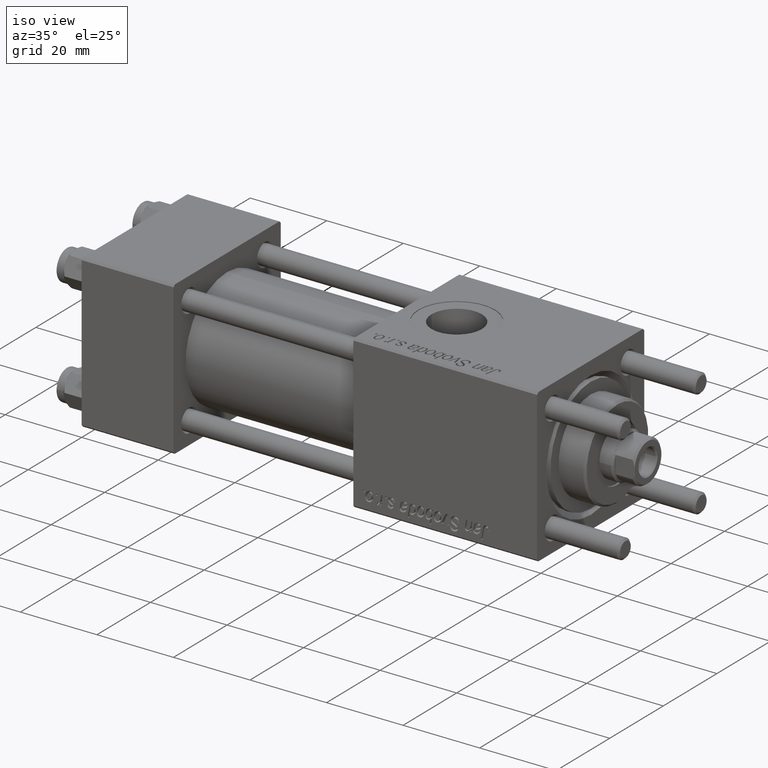
[diagram: clean part render]
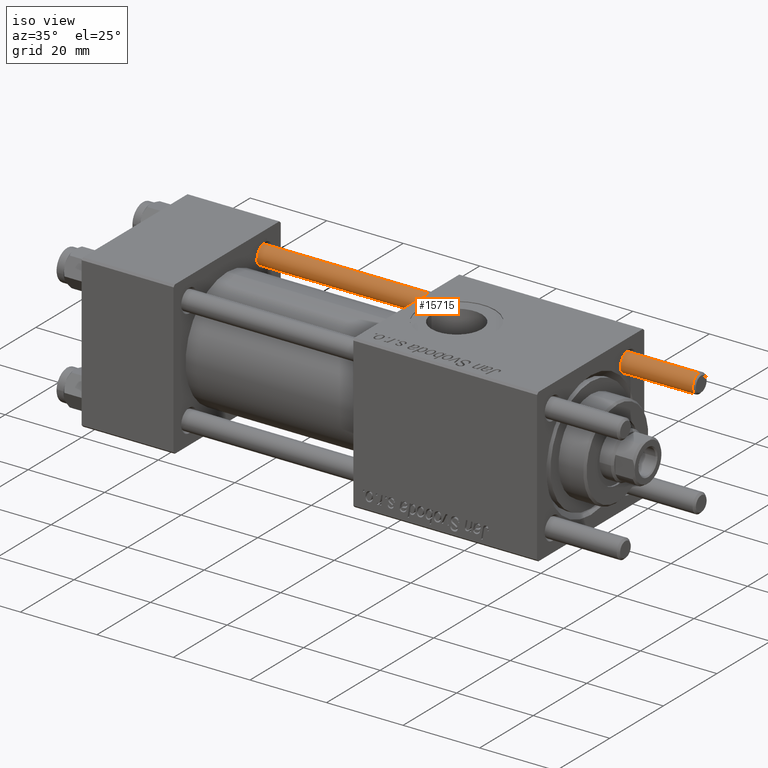
[diagram: same view with one face highlighted and labeled with its STEP entity id]
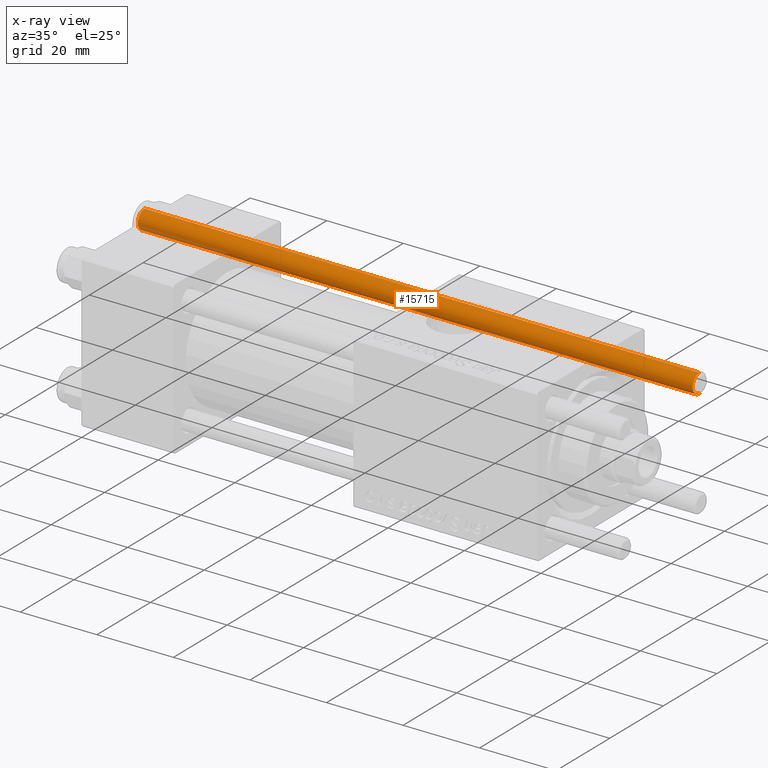
[diagram: x-ray of the same camera — body ghosted, the highlighted face saturated]
A machine part, iso view. The second image highlights one B-rep face of the part: STEP entity #15715.
The next image is the same camera in x-ray: the body ghosted, the highlighted face saturated — about 4% of this face is hidden behind the body in this view.
In plain terms, the highlighted cylindrical surface (edge-blend (fillet) strip) has radius 2.5 mm, axis along (1, -0, -0).
Its self-contained STEP definition (entity closure, byte-faithful):
#1450 = DIRECTION ( 'NONE',  ( -0.000000000000000000, -0.000000000000000000, -1.000000000000000000 ) ) ;
#4673 = CIRCLE ( 'NONE', #18454, 2.500000000000000000 ) ;
#4821 = LINE ( 'NONE', #39533, #52321 ) ;
#5386 = DIRECTION ( 'NONE',  ( -0.000000000000000000, -0.000000000000000000, -1.000000000000000000 ) ) ;
#8073 = CARTESIAN_POINT ( 'NONE',  ( -2.500000000000000000, 0.000000000000000000, 145.5000000000000284 ) ) ;
#8199 = FACE_OUTER_BOUND ( 'NONE', #54858, .T. ) ;
#8323 = CARTESIAN_POINT ( 'NONE',  ( 2.500000000000000000, 3.061616997868383141E-16, 145.5000000000000284 ) ) ;
#9000 = VERTEX_POINT ( 'NONE', #8073 ) ;
#10959 = AXIS2_PLACEMENT_3D ( 'NONE', #17022, #55227, #15915 ) ;
#11200 = LINE ( 'NONE', #46216, #23717 ) ;
#15715 = ADVANCED_FACE ( 'NONE', ( #8199 ), #51550, .T. ) ;
#15915 = DIRECTION ( 'NONE',  ( 1.000000000000000000, 0.000000000000000000, 0.000000000000000000 ) ) ;
#16497 = CARTESIAN_POINT ( 'NONE',  ( 0.000000000000000000, 0.000000000000000000, 0.5000000000000559552 ) ) ;
#17022 = CARTESIAN_POINT ( 'NONE',  ( 0.000000000000000000, 0.000000000000000000, 145.5000000000000284 ) ) ;
#18454 = AXIS2_PLACEMENT_3D ( 'NONE', #16497, #51513, #42054 ) ;
#23717 = VECTOR ( 'NONE', #1450, 1000.000000000000000 ) ;
#25678 = DIRECTION ( 'NONE',  ( -1.000000000000000000, 0.000000000000000000, 0.000000000000000000 ) ) ;
#28528 = VERTEX_POINT ( 'NONE', #8323 ) ;
#29973 = ORIENTED_EDGE ( 'NONE', *, *, #55781, .F. ) ;
#29980 = CARTESIAN_POINT ( 'NONE',  ( 0.000000000000000000, 0.000000000000000000, 146.0000000000000000 ) ) ;
#33909 = AXIS2_PLACEMENT_3D ( 'NONE', #29980, #55840, #25678 ) ;
#35696 = CIRCLE ( 'NONE', #10959, 2.500000000000000000 ) ;
#38306 = ORIENTED_EDGE ( 'NONE', *, *, #52460, .T. ) ;
#39533 = CARTESIAN_POINT ( 'NONE',  ( 2.500000000000000000, 3.061616997868383141E-16, 146.0000000000000000 ) ) ;
#42054 = DIRECTION ( 'NONE',  ( 1.000000000000000000, 0.000000000000000000, 0.000000000000000000 ) ) ;
#42587 = ORIENTED_EDGE ( 'NONE', *, *, #45861, .T. ) ;
#45861 = EDGE_CURVE ( 'NONE', #9000, #55694, #11200, .T. ) ;
#46216 = CARTESIAN_POINT ( 'NONE',  ( -2.500000000000000000, 0.000000000000000000, 146.0000000000000000 ) ) ;
#51513 = DIRECTION ( 'NONE',  ( -0.000000000000000000, -0.000000000000000000, 1.000000000000000000 ) ) ;
#51550 = CYLINDRICAL_SURFACE ( 'NONE', #33909, 2.500000000000000000 ) ;
#52321 = VECTOR ( 'NONE', #5386, 1000.000000000000000 ) ;
#52460 = EDGE_CURVE ( 'NONE', #28528, #9000, #35696, .T. ) ;
#52466 = CARTESIAN_POINT ( 'NONE',  ( -2.500000000000000000, 0.000000000000000000, 0.5000000000000559552 ) ) ;
#52681 = ORIENTED_EDGE ( 'NONE', *, *, #56294, .T. ) ;
#54036 = VERTEX_POINT ( 'NONE', #54202 ) ;
#54202 = CARTESIAN_POINT ( 'NONE',  ( 2.500000000000000000, 3.061616997868383141E-16, 0.5000000000000559552 ) ) ;
#54858 = EDGE_LOOP ( 'NONE', ( #29973, #38306, #42587, #52681 ) ) ;
#55227 = DIRECTION ( 'NONE',  ( 0.000000000000000000, 0.000000000000000000, -1.000000000000000000 ) ) ;
#55694 = VERTEX_POINT ( 'NONE', #52466 ) ;
#55781 = EDGE_CURVE ( 'NONE', #28528, #54036, #4821, .T. ) ;
#55840 = DIRECTION ( 'NONE',  ( -0.000000000000000000, -0.000000000000000000, -1.000000000000000000 ) ) ;
#56294 = EDGE_CURVE ( 'NONE', #55694, #54036, #4673, .T. ) ;